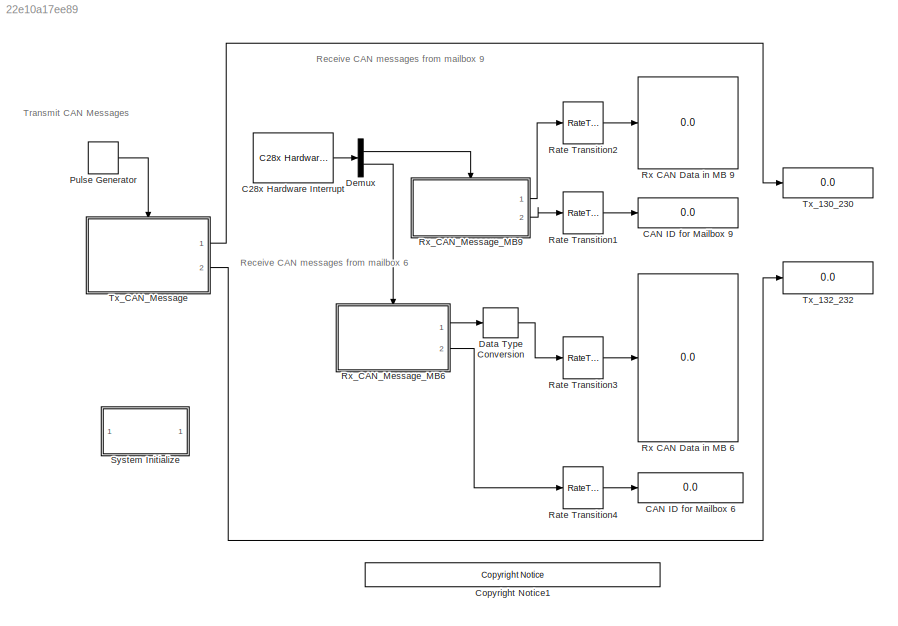
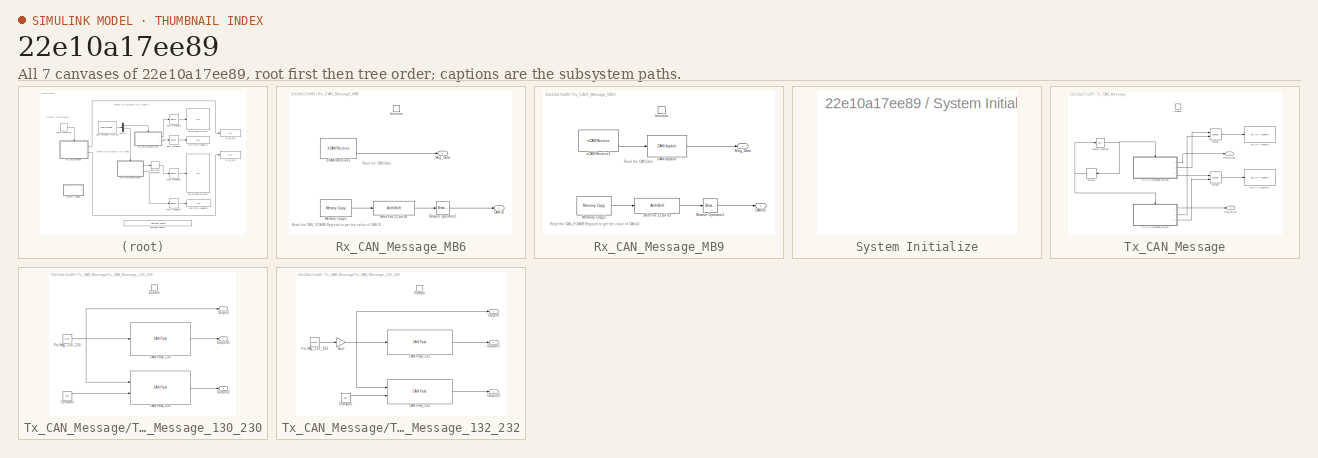
[diagram: thumbnail index - all 7 canvases of the model, root first then tree order]
MODEL slx_22e10a17ee89
KIND model
CONFIG AbsTol = auto
CONFIG EnableMultiTasking = on
CONFIG FixedStep = auto
CONFIG MaxStep = auto
CONFIG MinStep = auto
CONFIG RelTol = 1e-3
CONFIG SampleTimeConstraint = Unconstrained
CONFIG SolverName = FixedStepDiscrete
CONFIG StartTime = 0.0
CONFIG StopTime = Inf
BLOCK [Reference] C28x Hardware Interrupt  REF=c2000lib/Scheduling/C28x Hardware Interrupt
  Ports = [0, 1]
  SourceBlock = c2000lib/Scheduling/C28x Hardware Interrupt
  SourceProductBaseCode = TIC2000
  SourceType = C28x Interrupt Block
BLOCK [Display] CAN ID for Mailbox 6
  Decimation = 1
  Format = hex (Stored Integer)
  Ports = [1]
BLOCK [Display] CAN ID for Mailbox 9
  Decimation = 1
  Format = hex (Stored Integer)
  Ports = [1]
BLOCK [Reference] <copyright redacted>
  Ports = []
  SourceBlock = demo_controls/<copyright redacted>
  SourceProductBaseCode = ME
  SourceType = <copyright redacted>
BLOCK [DataTypeConversion] Data Type Conversion
  OutDataTypeStr = uint16
  RndMeth = Floor
  SaturateOnIntegerOverflow = off
BLOCK [Demux] Demux
  Outputs = 2
  Ports = [1, 2]
BLOCK [DiscretePulseGenerator] Pulse Generator
  Period = 10
  Ports = [0, 1]
  PulseWidth = 3
BLOCK [RateTransition] Rate Transition1
  Deterministic = off
  Integrity = off
BLOCK [RateTransition] Rate Transition2
  Deterministic = off
  Integrity = off
BLOCK [RateTransition] Rate Transition3
  Deterministic = off
  Integrity = off
BLOCK [RateTransition] Rate Transition4
  Deterministic = off
  Integrity = off
BLOCK [Display] Rx CAN Data in MB 6
  Decimation = 1
  Format = decimal (Stored Integer)
  Ports = [1]
BLOCK [Display] Rx CAN Data in MB 9
  Decimation = 1
  Format = decimal (Stored Integer)
  Ports = [1]
BLOCK [SubSystem] Rx_CAN_Message_MB6
  Ports = [0, 2, 0, 1]
  RequestExecContextInheritance = off
  TreatAsAtomicUnit = on
BLOCK [Reference] Rx_CAN_Message_MB6/Bitwise Operator1  REF=simulink/Logic and Bit
Operations/Bitwise
Operator
  Ports = [1, 1]
  SourceBlock = simulink/Logic and Bit\nOperations/Bitwise\nOperator
  SourceProductBaseCode = SL
  SourceType = Bitwise Operator
BLOCK [Outport] Rx_CAN_Message_MB6/CAN ID
  Port = 2
BLOCK [Reference] Rx_CAN_Message_MB6/Memory Copy1  REF=idelinklib_common/Memory Copy
  Ports = [0, 1]
  Priority = 2
  SourceBlock = idelinklib_common/Memory Copy
  SourceProductBaseCode = ME
  SourceType = Memory Copy
BLOCK [Outport] Rx_CAN_Message_MB6/Msg_Data
BLOCK [ArithShift] Rx_CAN_Message_MB6/Shift For 11-bit ID
  BitShiftNumber = 18
  InputPortMap = u0
  Ports = [1, 1]
BLOCK [Reference] Rx_CAN_Message_MB6/eCAN Receive1  REF=c280xlib/eCAN Receive
  Ports = [0, 2]
  Priority = 1
  SourceBlock = c280xlib/eCAN Receive
  SourceProductName = Embedded Coder Support Package for Texas Instruments C2000 Processors
  SourceType = C28x eCAN Receive
BLOCK [TriggerPort] Rx_CAN_Message_MB6/function
  Ports = []
  StatesWhenEnabling = held
  TriggerType = function-call
  VariantControl = Variant
BLOCK [SubSystem] Rx_CAN_Message_MB9
  Ports = [0, 2, 0, 1]
  RequestExecContextInheritance = off
  TreatAsAtomicUnit = on
BLOCK [Reference] Rx_CAN_Message_MB9/Bitwise Operator1  REF=simulink/Logic and Bit
Operations/Bitwise
Operator
  Ports = [1, 1]
  SourceBlock = simulink/Logic and Bit\nOperations/Bitwise\nOperator
  SourceProductBaseCode = SL
  SourceType = Bitwise Operator
BLOCK [Outport] Rx_CAN_Message_MB9/CAN ID
  Port = 2
BLOCK [Reference] Rx_CAN_Message_MB9/CAN Unpack  REF=canmsglib/CAN Unpack
  Ports = [1, 1]
  SourceBlock = canmsglib/CAN Unpack
  SourceProductBaseCode = ME,XP,VN
  SourceType = CAN Unpack
BLOCK [Reference] Rx_CAN_Message_MB9/Memory Copy1  REF=idelinklib_common/Memory Copy
  Ports = [0, 1]
  Priority = 2
  SourceBlock = idelinklib_common/Memory Copy
  SourceProductBaseCode = ME
  SourceType = Memory Copy
BLOCK [Outport] Rx_CAN_Message_MB9/Msg_Data
BLOCK [ArithShift] Rx_CAN_Message_MB9/Shift For 11-bit ID
  BitShiftNumber = 18
  InputPortMap = u0
  Ports = [1, 1]
BLOCK [Reference] Rx_CAN_Message_MB9/eCAN Receive1  REF=c280xlib/eCAN Receive
  Ports = [0, 2]
  Priority = 1
  SourceBlock = c280xlib/eCAN Receive
  SourceProductName = Embedded Coder Support Package for Texas Instruments C2000 Processors
  SourceType = C28x eCAN Receive
BLOCK [TriggerPort] Rx_CAN_Message_MB9/function
  Ports = []
  StatesWhenEnabling = held
  TriggerType = function-call
  VariantControl = Variant
BLOCK [SubSystem] System Initialize
  CopyFcn = cccopyfcn(gcb)
  OpenFcn = ccopenfcn('System Initialize Function')
  Ports = []
  RequestExecContextInheritance = off
BLOCK [Display] Tx_130_230
  Decimation = 1
  Ports = [1]
BLOCK [Display] Tx_132_232
  Decimation = 1
  Ports = [1]
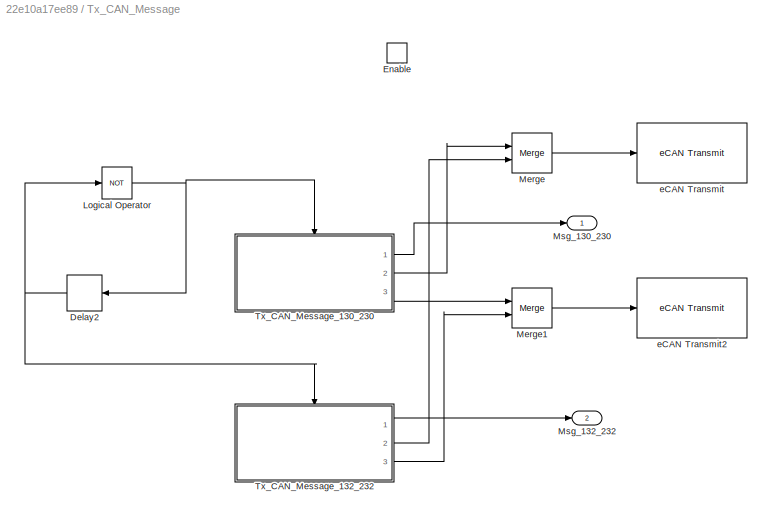
BLOCK [SubSystem] Tx_CAN_Message
  Ports = [0, 2, 1]
  RequestExecContextInheritance = off
BLOCK [Delay] Tx_CAN_Message/Delay2
  DelayLength = 3
  InitialCondition = 0
  InputPortMap = u0
  Ports = [1, 1]
  UseCircularBuffer = on
BLOCK [EnablePort] Tx_CAN_Message/Enable
  Ports = []
BLOCK [Logic] Tx_CAN_Message/Logical Operator
  Operator = NOT
  OutDataTypeStr = boolean
  Ports = [1, 1]
BLOCK [Merge] Tx_CAN_Message/Merge
  Ports = [2, 1]
BLOCK [Merge] Tx_CAN_Message/Merge1
  Ports = [2, 1]
BLOCK [Outport] Tx_CAN_Message/Msg_130_230
BLOCK [Outport] Tx_CAN_Message/Msg_132_232
  Port = 2
BLOCK [SubSystem] Tx_CAN_Message/Tx_CAN_Message_130_230
  Ports = [0, 3, 1]
  RequestExecContextInheritance = off
  TreatAsAtomicUnit = on
BLOCK [Reference] Tx_CAN_Message/Tx_CAN_Message_130_230/CAN Pack_130  REF=canmsglib/CAN Pack
  Ports = [1, 1]
  SourceBlock = canmsglib/CAN Pack
  SourceProductBaseCode = ME,XP,VN
  SourceType = CAN Pack
BLOCK [Reference] Tx_CAN_Message/Tx_CAN_Message_130_230/CAN Pack_230  REF=canmsglib/CAN Pack
  Ports = [2, 1]
  SourceBlock = canmsglib/CAN Pack
  SourceProductBaseCode = ME,XP,VN
  SourceType = CAN Pack
BLOCK [Constant] Tx_CAN_Message/Tx_CAN_Message_130_230/Constant
  OutDataTypeStr = uint8
  Value = 230
BLOCK [EnablePort] Tx_CAN_Message/Tx_CAN_Message_130_230/Enable
  Ports = []
BLOCK [Reference] Tx_CAN_Message/Tx_CAN_Message_130_230/For Msg_130_230  REF=simulink/Sources/Counter
Free-Running
  Ports = [0, 1]
  SourceBlock = simulink/Sources/Counter\nFree-Running
  SourceProductBaseCode = SL
  SourceType = Counter Free-Running
BLOCK [Outport] Tx_CAN_Message/Tx_CAN_Message_130_230/Outport
BLOCK [Outport] Tx_CAN_Message/Tx_CAN_Message_130_230/Outport1
  Port = 2
BLOCK [Outport] Tx_CAN_Message/Tx_CAN_Message_130_230/Outport2
  Port = 3
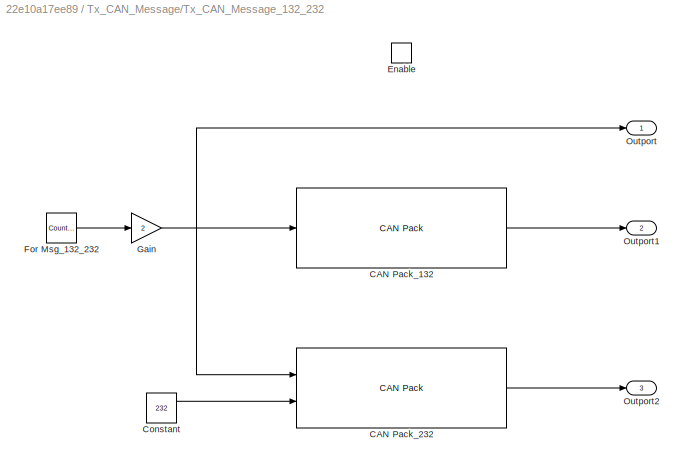
BLOCK [SubSystem] Tx_CAN_Message/Tx_CAN_Message_132_232
  Ports = [0, 3, 1]
  RequestExecContextInheritance = off
  TreatAsAtomicUnit = on
BLOCK [Reference] Tx_CAN_Message/Tx_CAN_Message_132_232/CAN Pack_132  REF=canmsglib/CAN Pack
  Ports = [1, 1]
  SourceBlock = canmsglib/CAN Pack
  SourceProductBaseCode = ME,XP,VN
  SourceType = CAN Pack
BLOCK [Reference] Tx_CAN_Message/Tx_CAN_Message_132_232/CAN Pack_232  REF=canmsglib/CAN Pack
  Ports = [2, 1]
  SourceBlock = canmsglib/CAN Pack
  SourceProductBaseCode = ME,XP,VN
  SourceType = CAN Pack
BLOCK [Constant] Tx_CAN_Message/Tx_CAN_Message_132_232/Constant
  OutDataTypeStr = uint8
  Value = 232
BLOCK [EnablePort] Tx_CAN_Message/Tx_CAN_Message_132_232/Enable
  Ports = []
BLOCK [Reference] Tx_CAN_Message/Tx_CAN_Message_132_232/For Msg_132_232  REF=simulink/Sources/Counter
Free-Running
  Ports = [0, 1]
  SourceBlock = simulink/Sources/Counter\nFree-Running
  SourceProductBaseCode = SL
  SourceType = Counter Free-Running
BLOCK [Gain] Tx_CAN_Message/Tx_CAN_Message_132_232/Gain
  Gain = 2
  OutDataTypeStr = uint8
  ParamDataTypeStr = uint8
BLOCK [Outport] Tx_CAN_Message/Tx_CAN_Message_132_232/Outport
BLOCK [Outport] Tx_CAN_Message/Tx_CAN_Message_132_232/Outport1
  Port = 2
BLOCK [Outport] Tx_CAN_Message/Tx_CAN_Message_132_232/Outport2
  Port = 3
BLOCK [Reference] Tx_CAN_Message/eCAN Transmit  REF=c280xlib/eCAN Transmit
  Ports = [1]
  SourceBlock = c280xlib/eCAN Transmit
  SourceProductName = Embedded Coder Support Package for Texas Instruments C2000 Processors
  SourceType = C28x eCAN Transmit
BLOCK [Reference] Tx_CAN_Message/eCAN Transmit2  REF=c280xlib/eCAN Transmit
  Ports = [1]
  SourceBlock = c280xlib/eCAN Transmit
  SourceProductName = Embedded Coder Support Package for Texas Instruments C2000 Processors
  SourceType = C28x eCAN Transmit
ANNOTATION (root): Receive CAN messages from mailbox 6
ANNOTATION (root): Receive CAN messages from mailbox 9
ANNOTATION (root): Transmit CAN Messages
ANNOTATION Rx_CAN_Message_MB6: Read the CAN Data
ANNOTATION Rx_CAN_Message_MB6: Read the CAN_IF2ARB Register to get the value of CAN ID
ANNOTATION Rx_CAN_Message_MB9: Read the CAN Data
ANNOTATION Rx_CAN_Message_MB9: Read the CAN_IF2ARB Register to get the value of CAN ID
LINE C28x Hardware Interrupt:1 -> Demux:1
LINE Data Type Conversion:1 -> Rate Transition3:1
LINE Demux:1 -> Rx_CAN_Message_MB9:trigger
LINE Demux:2 -> Rx_CAN_Message_MB6:trigger
LINE Pulse Generator:1 -> Tx_CAN_Message:enable
LINE Rate Transition1:1 -> CAN ID for Mailbox 9:1
LINE Rate Transition2:1 -> Rx CAN Data in MB 9:1
LINE Rate Transition3:1 -> Rx CAN Data in MB 6:1
LINE Rate Transition4:1 -> CAN ID for Mailbox 6:1
LINE Rx_CAN_Message_MB6/Bitwise Operator1:1 -> Rx_CAN_Message_MB6/CAN ID:1
LINE Rx_CAN_Message_MB6/Memory Copy1:1 -> Rx_CAN_Message_MB6/Shift For 11-bit ID:1
LINE Rx_CAN_Message_MB6/Shift For 11-bit ID:1 -> Rx_CAN_Message_MB6/Bitwise Operator1:1
LINE Rx_CAN_Message_MB6/eCAN Receive1:2 -> Rx_CAN_Message_MB6/Msg_Data:1
LINE Rx_CAN_Message_MB6:1 -> Data Type Conversion:1
LINE Rx_CAN_Message_MB6:2 -> Rate Transition4:1
LINE Rx_CAN_Message_MB9/Bitwise Operator1:1 -> Rx_CAN_Message_MB9/CAN ID:1
LINE Rx_CAN_Message_MB9/CAN Unpack:1 -> Rx_CAN_Message_MB9/Msg_Data:1
LINE Rx_CAN_Message_MB9/Memory Copy1:1 -> Rx_CAN_Message_MB9/Shift For 11-bit ID:1
LINE Rx_CAN_Message_MB9/Shift For 11-bit ID:1 -> Rx_CAN_Message_MB9/Bitwise Operator1:1
LINE Rx_CAN_Message_MB9/eCAN Receive1:2 -> Rx_CAN_Message_MB9/CAN Unpack:1
LINE Rx_CAN_Message_MB9:1 -> Rate Transition2:1
LINE Rx_CAN_Message_MB9:2 -> Rate Transition1:1
NET Tx_CAN_Message/Delay2:1 -> Tx_CAN_Message/Logical Operator:1, Tx_CAN_Message/Tx_CAN_Message_132_232:enable
NET Tx_CAN_Message/Logical Operator:1 -> Tx_CAN_Message/Delay2:1, Tx_CAN_Message/Tx_CAN_Message_130_230:enable
LINE Tx_CAN_Message/Merge1:1 -> Tx_CAN_Message/eCAN Transmit2:1
LINE Tx_CAN_Message/Merge:1 -> Tx_CAN_Message/eCAN Transmit:1
LINE Tx_CAN_Message/Tx_CAN_Message_130_230/CAN Pack_130:1 -> Tx_CAN_Message/Tx_CAN_Message_130_230/Outport1:1
LINE Tx_CAN_Message/Tx_CAN_Message_130_230/CAN Pack_230:1 -> Tx_CAN_Message/Tx_CAN_Message_130_230/Outport2:1
LINE Tx_CAN_Message/Tx_CAN_Message_130_230/Constant:1 -> Tx_CAN_Message/Tx_CAN_Message_130_230/CAN Pack_230:2
NET Tx_CAN_Message/Tx_CAN_Message_130_230/For Msg_130_230:1 -> Tx_CAN_Message/Tx_CAN_Message_130_230/CAN Pack_130:1, Tx_CAN_Message/Tx_CAN_Message_130_230/CAN Pack_230:1, Tx_CAN_Message/Tx_CAN_Message_130_230/Outport:1
LINE Tx_CAN_Message/Tx_CAN_Message_130_230:1 -> Tx_CAN_Message/Msg_130_230:1
LINE Tx_CAN_Message/Tx_CAN_Message_130_230:2 -> Tx_CAN_Message/Merge:1
LINE Tx_CAN_Message/Tx_CAN_Message_130_230:3 -> Tx_CAN_Message/Merge1:1
LINE Tx_CAN_Message/Tx_CAN_Message_132_232/CAN Pack_132:1 -> Tx_CAN_Message/Tx_CAN_Message_132_232/Outport1:1
LINE Tx_CAN_Message/Tx_CAN_Message_132_232/CAN Pack_232:1 -> Tx_CAN_Message/Tx_CAN_Message_132_232/Outport2:1
LINE Tx_CAN_Message/Tx_CAN_Message_132_232/Constant:1 -> Tx_CAN_Message/Tx_CAN_Message_132_232/CAN Pack_232:2
LINE Tx_CAN_Message/Tx_CAN_Message_132_232/For Msg_132_232:1 -> Tx_CAN_Message/Tx_CAN_Message_132_232/Gain:1
NET Tx_CAN_Message/Tx_CAN_Message_132_232/Gain:1 -> Tx_CAN_Message/Tx_CAN_Message_132_232/CAN Pack_132:1, Tx_CAN_Message/Tx_CAN_Message_132_232/CAN Pack_232:1, Tx_CAN_Message/Tx_CAN_Message_132_232/Outport:1
LINE Tx_CAN_Message/Tx_CAN_Message_132_232:1 -> Tx_CAN_Message/Msg_132_232:1
LINE Tx_CAN_Message/Tx_CAN_Message_132_232:2 -> Tx_CAN_Message/Merge:2
LINE Tx_CAN_Message/Tx_CAN_Message_132_232:3 -> Tx_CAN_Message/Merge1:2
LINE Tx_CAN_Message:1 -> Tx_130_230:1
LINE Tx_CAN_Message:2 -> Tx_132_232:1
note: NET lines group one-source signal fan-out (src -> all destinations, sorted); 1:1 wires keep LINE
